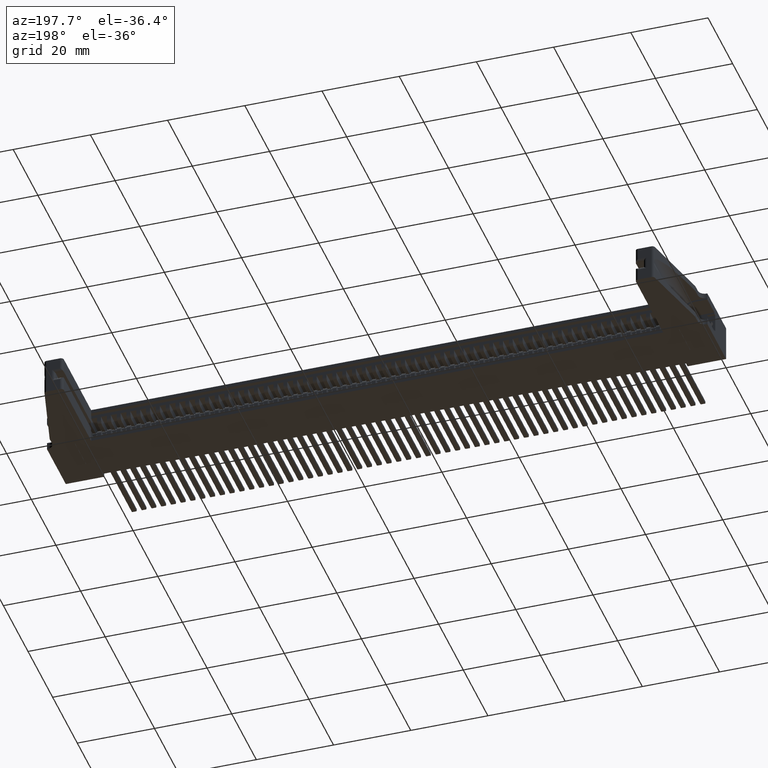
[diagram: clean part render]
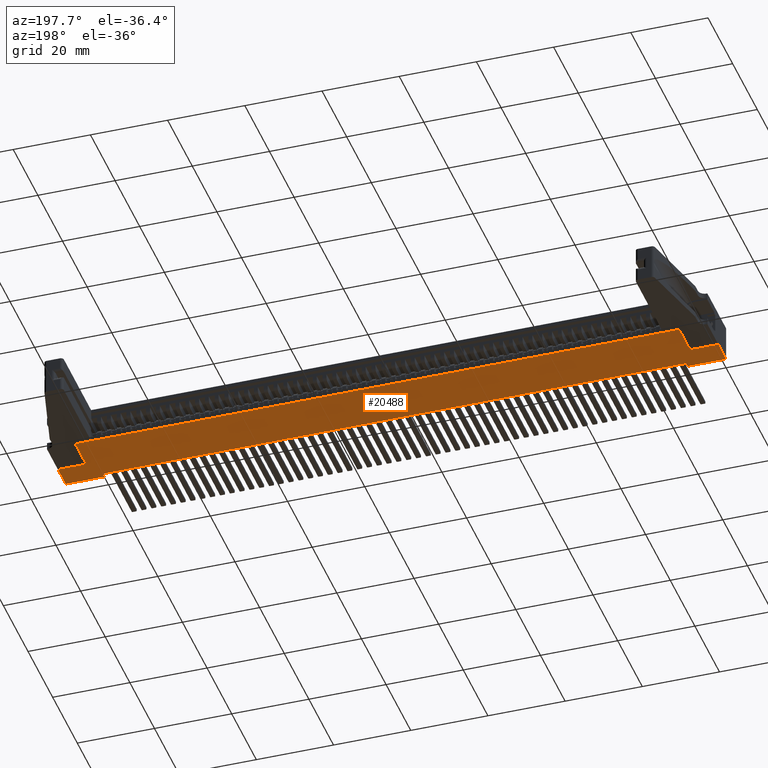
[diagram: same view with one face highlighted and labeled with its STEP entity id]
A machine part, auxiliary view. The second image highlights one B-rep face of the part: STEP entity #20488.
In plain terms, the highlighted planar face has unit normal (-0, 0, 1).
Its self-contained STEP definition (entity closure, byte-faithful):
#168 = VECTOR ( 'NONE', #36401, 39.37007874015748100 ) ;
#449 = VECTOR ( 'NONE', #17428, 39.37007874015748100 ) ;
#1283 = LINE ( 'NONE', #13729, #34850 ) ;
#2155 = EDGE_CURVE ( 'NONE', #26110, #39463, #7722, .T. ) ;
#2360 = CARTESIAN_POINT ( 'NONE',  ( 0.2874999999999999800, 0.2500000000000000000, -0.3700000000000001600 ) ) ;
#2668 = EDGE_LOOP ( 'NONE', ( #29430, #31772, #12140, #25436, #16738, #42085, #8053, #25807, #13894, #36852, #17021, #35712 ) ) ;
#2828 = CARTESIAN_POINT ( 'NONE',  ( 6.735000000000000300, 0.0000000000000000000, -0.3700000000000000000 ) ) ;
#2886 = VECTOR ( 'NONE', #7172, 39.37007874015748100 ) ;
#2922 = DIRECTION ( 'NONE',  ( 1.000000000000000000, 0.0000000000000000000, 2.028097990842066200E-017 ) ) ;
#3689 = DIRECTION ( 'NONE',  ( -0.0000000000000000000, -1.000000000000000000, -0.0000000000000000000 ) ) ;
#4554 = CARTESIAN_POINT ( 'NONE',  ( 0.0000000000000000000, 0.0000000000000000000, -0.3700000000000001600 ) ) ;
#5441 = CARTESIAN_POINT ( 'NONE',  ( 6.447500000000000700, 0.2500000000000000000, -0.3699999999999990000 ) ) ;
#6050 = LINE ( 'NONE', #19742, #16688 ) ;
#7172 = DIRECTION ( 'NONE',  ( -0.0000000000000000000, -1.000000000000000000, -0.0000000000000000000 ) ) ;
#7572 = CARTESIAN_POINT ( 'NONE',  ( 0.3924999999999996800, 0.05000000000000000300, -0.3700000000000000000 ) ) ;
#7722 = LINE ( 'NONE', #20787, #13042 ) ;
#8053 = ORIENTED_EDGE ( 'NONE', *, *, #2155, .F. ) ;
#8650 = CARTESIAN_POINT ( 'NONE',  ( 6.342500000000000200, 0.0000000000000000000, -0.3700000000000000000 ) ) ;
#9038 = CARTESIAN_POINT ( 'NONE',  ( 0.0000000000000000000, 0.2500000000000000000, -0.3700000000000001600 ) ) ;
#9495 = AXIS2_PLACEMENT_3D ( 'NONE', #34010, #40825, #2922 ) ;
#9792 = VERTEX_POINT ( 'NONE', #13925 ) ;
#11325 = VERTEX_POINT ( 'NONE', #42142 ) ;
#11543 = EDGE_CURVE ( 'NONE', #12571, #23340, #29235, .T. ) ;
#11802 = LINE ( 'NONE', #33878, #25600 ) ;
#12140 = ORIENTED_EDGE ( 'NONE', *, *, #21450, .F. ) ;
#12571 = VERTEX_POINT ( 'NONE', #15445 ) ;
#12634 = VERTEX_POINT ( 'NONE', #36648 ) ;
#13042 = VECTOR ( 'NONE', #13831, 39.37007874015748100 ) ;
#13729 = CARTESIAN_POINT ( 'NONE',  ( 6.342500000000000200, 0.05000000000000000300, -0.3700000000000000000 ) ) ;
#13812 = LINE ( 'NONE', #13989, #449 ) ;
#13831 = DIRECTION ( 'NONE',  ( 1.000000000000000000, 0.0000000000000000000, 0.0000000000000000000 ) ) ;
#13894 = ORIENTED_EDGE ( 'NONE', *, *, #11543, .T. ) ;
#13925 = CARTESIAN_POINT ( 'NONE',  ( 6.735000000000000300, 0.2500000000000001100, -0.3700000000000000000 ) ) ;
#13989 = CARTESIAN_POINT ( 'NONE',  ( 0.0000000000000000000, 0.5999999999999999800, -0.3700000000000001600 ) ) ;
#14693 = VECTOR ( 'NONE', #24623, 39.37007874015748100 ) ;
#15445 = CARTESIAN_POINT ( 'NONE',  ( 0.3924999999999996800, 0.0000000000000000000, -0.3700000000000000000 ) ) ;
#15450 = VECTOR ( 'NONE', #38243, 39.37007874015748100 ) ;
#15467 = EDGE_CURVE ( 'NONE', #11325, #37957, #34754, .T. ) ;
#16317 = EDGE_CURVE ( 'NONE', #39463, #18256, #1283, .T. ) ;
#16688 = VECTOR ( 'NONE', #16954, 39.37007874015748100 ) ;
#16700 = EDGE_CURVE ( 'NONE', #11325, #17268, #41147, .T. ) ;
#16738 = ORIENTED_EDGE ( 'NONE', *, *, #27386, .T. ) ;
#16954 = DIRECTION ( 'NONE',  ( -0.0000000000000000000, -1.000000000000000000, -0.0000000000000000000 ) ) ;
#17021 = ORIENTED_EDGE ( 'NONE', *, *, #15467, .F. ) ;
#17268 = VERTEX_POINT ( 'NONE', #26236 ) ;
#17428 = DIRECTION ( 'NONE',  ( -1.000000000000000000, -0.0000000000000000000, -2.028097990842066200E-017 ) ) ;
#18214 = VECTOR ( 'NONE', #34866, 39.37007874015748100 ) ;
#18223 = CARTESIAN_POINT ( 'NONE',  ( 6.735000000000000300, 0.2500000000000000000, -0.3700000000000000000 ) ) ;
#18256 = VERTEX_POINT ( 'NONE', #8650 ) ;
#18633 = EDGE_CURVE ( 'NONE', #9792, #31689, #11802, .T. ) ;
#19742 = CARTESIAN_POINT ( 'NONE',  ( 0.0000000000000000000, 0.5999999999999999800, -0.3700000000000001600 ) ) ;
#19988 = EDGE_CURVE ( 'NONE', #12634, #17268, #13812, .T. ) ;
#20488 = ADVANCED_FACE ( 'NONE', ( #41373 ), #30584, .F. ) ;
#20787 = CARTESIAN_POINT ( 'NONE',  ( 0.3924999999999996800, 0.05000000000000000300, -0.3700000000000000000 ) ) ;
#21450 = EDGE_CURVE ( 'NONE', #9792, #31493, #42300, .T. ) ;
#21658 = EDGE_CURVE ( 'NONE', #31493, #12634, #22112, .T. ) ;
#22112 = LINE ( 'NONE', #5441, #35401 ) ;
#23340 = VERTEX_POINT ( 'NONE', #38291 ) ;
#23972 = DIRECTION ( 'NONE',  ( -0.0000000000000000000, -1.000000000000000000, -0.0000000000000000000 ) ) ;
#24612 = LINE ( 'NONE', #4554, #18214 ) ;
#24623 = DIRECTION ( 'NONE',  ( -1.000000000000000000, 0.0000000000000000000, 3.563279991736001000E-015 ) ) ;
#25436 = ORIENTED_EDGE ( 'NONE', *, *, #18633, .T. ) ;
#25600 = VECTOR ( 'NONE', #3689, 39.37007874015748100 ) ;
#25807 = ORIENTED_EDGE ( 'NONE', *, *, #39782, .T. ) ;
#25927 = DIRECTION ( 'NONE',  ( -0.0000000000000000000, 1.000000000000000000, -0.0000000000000000000 ) ) ;
#26110 = VERTEX_POINT ( 'NONE', #7572 ) ;
#26236 = CARTESIAN_POINT ( 'NONE',  ( 0.2874999999999999800, 0.5999999999999999800, -0.3700000000000001600 ) ) ;
#27386 = EDGE_CURVE ( 'NONE', #31689, #18256, #24612, .T. ) ;
#29235 = LINE ( 'NONE', #34970, #15450 ) ;
#29430 = ORIENTED_EDGE ( 'NONE', *, *, #19988, .F. ) ;
#30025 = LINE ( 'NONE', #41313, #2886 ) ;
#30584 = PLANE ( 'NONE',  #9495 ) ;
#31493 = VERTEX_POINT ( 'NONE', #42699 ) ;
#31689 = VERTEX_POINT ( 'NONE', #2828 ) ;
#31772 = ORIENTED_EDGE ( 'NONE', *, *, #21658, .F. ) ;
#32294 = EDGE_CURVE ( 'NONE', #37957, #23340, #6050, .T. ) ;
#32797 = DIRECTION ( 'NONE',  ( -1.000000000000000000, -0.0000000000000000000, -0.0000000000000000000 ) ) ;
#33192 = VECTOR ( 'NONE', #32797, 39.37007874015748100 ) ;
#33878 = CARTESIAN_POINT ( 'NONE',  ( 6.735000000000000300, 0.5999999999999999800, -0.3700000000000000000 ) ) ;
#34010 = CARTESIAN_POINT ( 'NONE',  ( 0.0000000000000000000, 0.5999999999999999800, -0.3700000000000001600 ) ) ;
#34754 = LINE ( 'NONE', #9038, #33192 ) ;
#34850 = VECTOR ( 'NONE', #23972, 39.37007874015748100 ) ;
#34866 = DIRECTION ( 'NONE',  ( -1.000000000000000000, -0.0000000000000000000, -2.028097990842066200E-017 ) ) ;
#34970 = CARTESIAN_POINT ( 'NONE',  ( 0.0000000000000000000, 0.0000000000000000000, -0.3700000000000001600 ) ) ;
#35401 = VECTOR ( 'NONE', #25927, 39.37007874015748100 ) ;
#35712 = ORIENTED_EDGE ( 'NONE', *, *, #16700, .T. ) ;
#36401 = DIRECTION ( 'NONE',  ( -0.0000000000000000000, 1.000000000000000000, -0.0000000000000000000 ) ) ;
#36648 = CARTESIAN_POINT ( 'NONE',  ( 6.447500000000000700, 0.5999999999999999800, -0.3699999999999990000 ) ) ;
#36852 = ORIENTED_EDGE ( 'NONE', *, *, #32294, .F. ) ;
#37957 = VERTEX_POINT ( 'NONE', #43530 ) ;
#38243 = DIRECTION ( 'NONE',  ( -1.000000000000000000, -0.0000000000000000000, -2.028097990842066200E-017 ) ) ;
#38291 = CARTESIAN_POINT ( 'NONE',  ( 0.0000000000000000000, 0.0000000000000000000, -0.3700000000000001600 ) ) ;
#39463 = VERTEX_POINT ( 'NONE', #43451 ) ;
#39782 = EDGE_CURVE ( 'NONE', #26110, #12571, #30025, .T. ) ;
#40825 = DIRECTION ( 'NONE',  ( -2.028097990842066200E-017, 0.0000000000000000000, 1.000000000000000000 ) ) ;
#41147 = LINE ( 'NONE', #2360, #168 ) ;
#41313 = CARTESIAN_POINT ( 'NONE',  ( 0.3924999999999996800, 0.05000000000000000300, -0.3700000000000000000 ) ) ;
#41373 = FACE_OUTER_BOUND ( 'NONE', #2668, .T. ) ;
#42085 = ORIENTED_EDGE ( 'NONE', *, *, #16317, .F. ) ;
#42142 = CARTESIAN_POINT ( 'NONE',  ( 0.2874999999999999800, 0.2500000000000000000, -0.3700000000000001600 ) ) ;
#42300 = LINE ( 'NONE', #18223, #14693 ) ;
#42699 = CARTESIAN_POINT ( 'NONE',  ( 6.447500000000000700, 0.2500000000000000000, -0.3699999999999990000 ) ) ;
#43451 = CARTESIAN_POINT ( 'NONE',  ( 6.342500000000000200, 0.05000000000000000300, -0.3700000000000000000 ) ) ;
#43530 = CARTESIAN_POINT ( 'NONE',  ( 0.0000000000000000000, 0.2500000000000000000, -0.3700000000000001600 ) ) ;